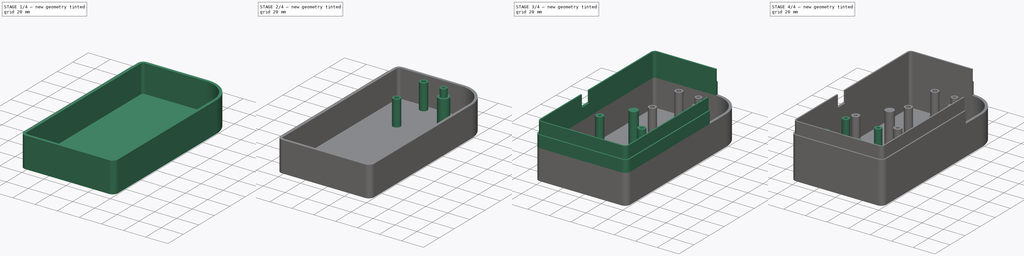
[diagram: build sequence overview — one tinted view per stage of 4, left to right]
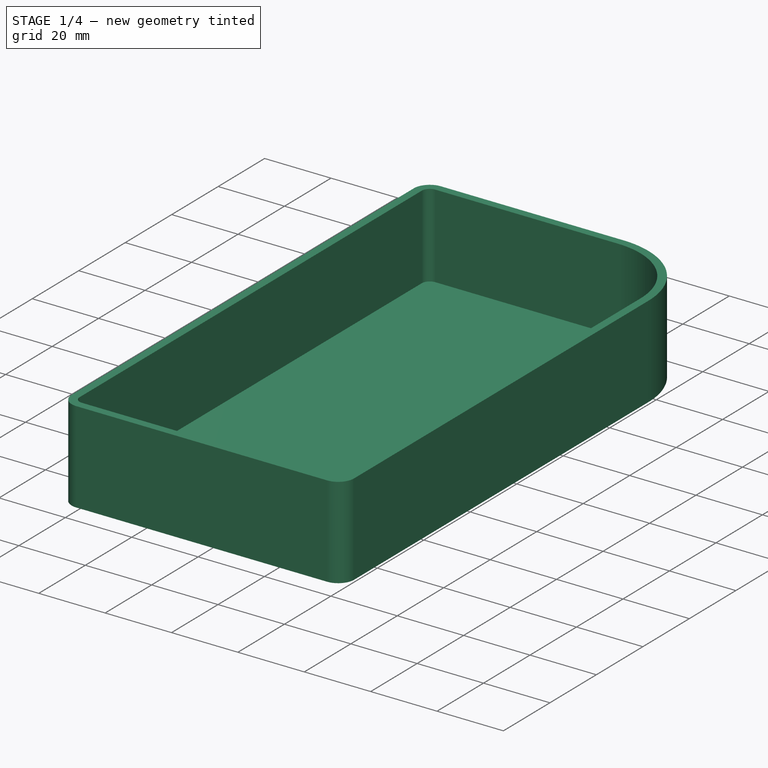
[diagram: stage 1 of 4 — iso view after this stage's code; geometry added in this stage tinted green]
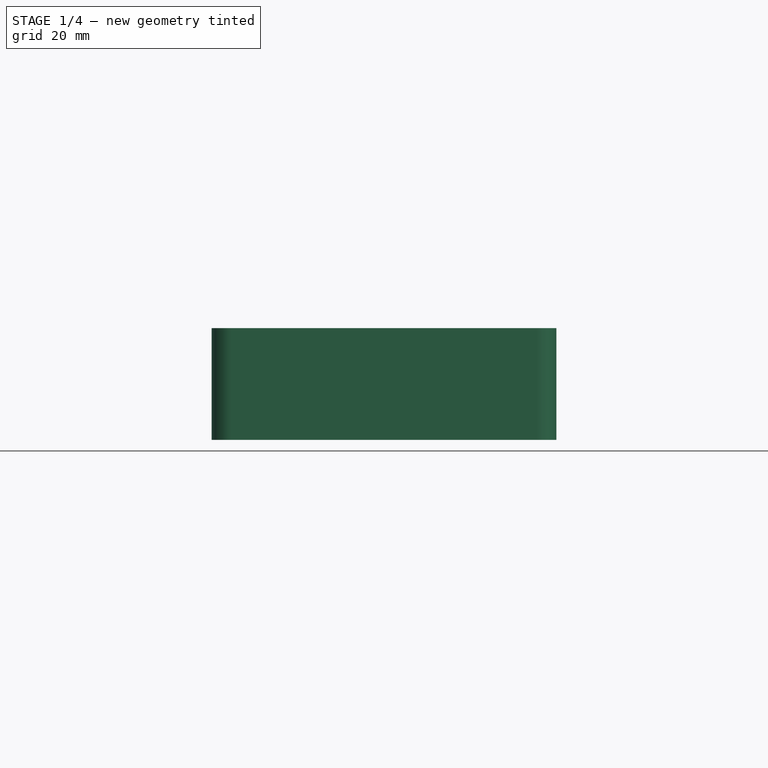
[diagram: stage 1 of 4 — front view after this stage's code; geometry added in this stage tinted green]
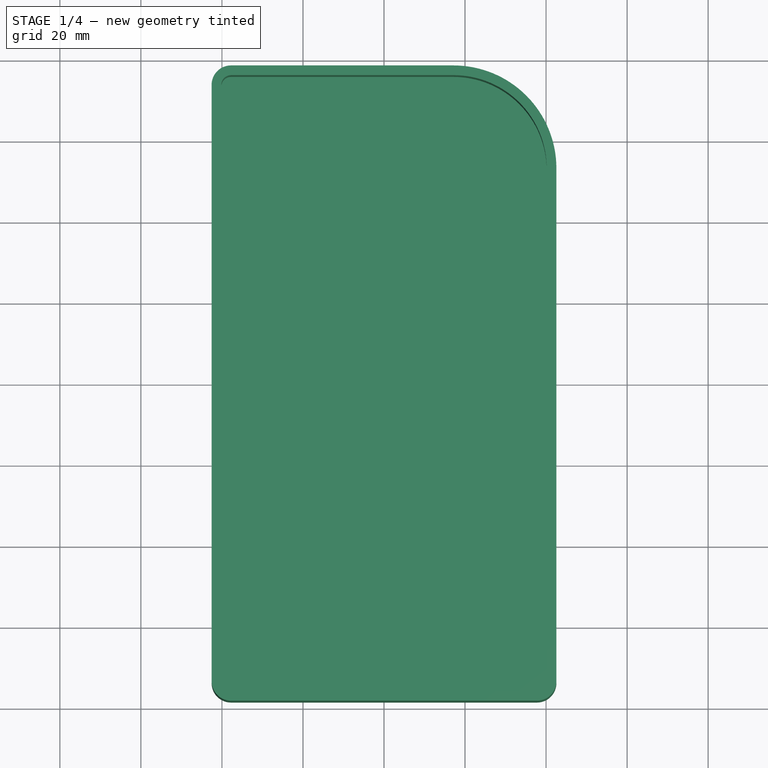
[diagram: stage 1 of 4 — top view after this stage's code; geometry added in this stage tinted green]
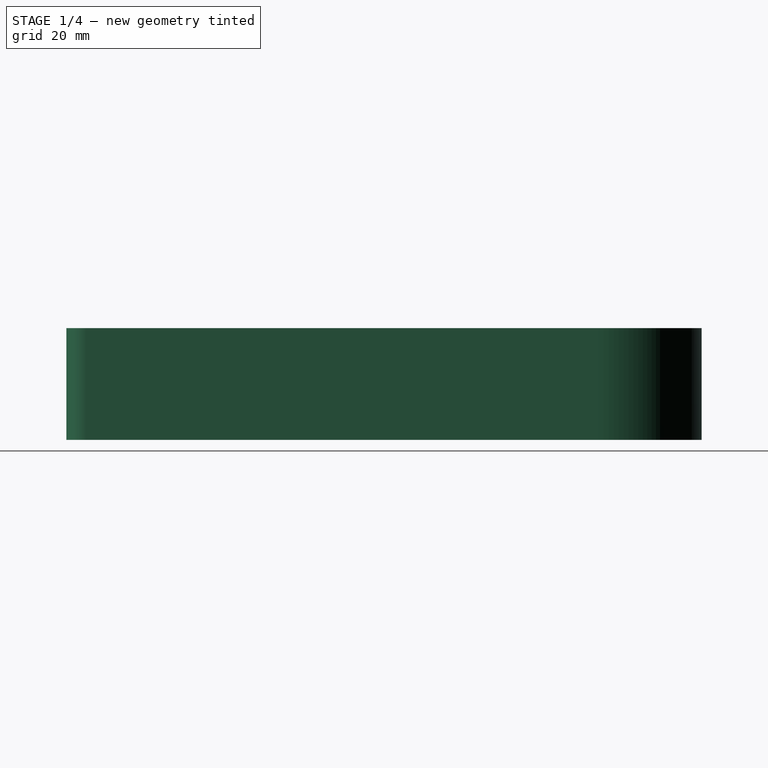
[diagram: stage 1 of 4 — right view after this stage's code; geometry added in this stage tinted green]
FCSTD DOCUMENT  (FreeCAD 0.19R24291 (Git))
Label: Back
License: All rights reserved
LicenseURL: http://en.wikipedia.org/wiki/All_rights_reserved
objects: Sketcher::SketchObject×9, PartDesign::Pad×9, PartDesign::CoordinateSystem×7, PartDesign::Fillet×1, PartDesign::Body×1
note: 37 computed .brp shape members not serialized (recipe doc carries the construction recipe); baked Part::Feature solids carry a one-line shape summary decoded from their .brp
EXTERNAL_REF file=data.FCStd obj=Spreadsheet

FEATURE [PartDesign::CoordinateSystem] LCS_0
  AttacherType = Attacher::AttachEngine3D
  MapMode = 2
  Support = -> [X_Axis]
FEATURE [Sketcher::SketchObject] Sketch  label="Sketch_back"
  FullyConstrained = true
  MapMode = 5
  Support = -> [XY_Plane]
  expr: Constraints[27] = data#<<data>>.OutsideLength
  expr: Constraints[28] = data#<<data>>.OutsideRadius
  expr: Constraints[26] = data#<<data>>.OutsideWidth
  expr: Constraints[25] = data#<<data>>.OutsideCornerRadius
  sketch-geometry (12):
    g0: ArcOfCircle CenterX=-37.75 CenterY=73.6 CenterZ=0 NormalX=0 NormalY=0 NormalZ=1 AngleXU=0 Radius=4.8 StartAngle=1.5708 EndAngle=3.14159
    g1: ArcOfCircle CenterX=17.15 CenterY=53 CenterZ=0 NormalX=0 NormalY=0 NormalZ=1 AngleXU=0 Radius=25.4 StartAngle=0 EndAngle=1.5708
    g2: ArcOfCircle CenterX=37.75 CenterY=-73.6 CenterZ=0 NormalX=0 NormalY=0 NormalZ=1 AngleXU=0 Radius=4.8 StartAngle=4.71239 EndAngle=6.28319
    g3: ArcOfCircle CenterX=-37.75 CenterY=-73.6 CenterZ=0 NormalX=0 NormalY=0 NormalZ=1 AngleXU=0 Radius=4.8 StartAngle=3.14159 EndAngle=4.71239
    g4: LineSegment StartX=-42.55 StartY=73.6 StartZ=0 EndX=-42.55 EndY=78.4 EndZ=0
    g5: LineSegment StartX=-37.75 StartY=78.4 StartZ=0 EndX=-42.55 EndY=78.4 EndZ=0
    g6: LineSegment StartX=37.75 StartY=-78.4 StartZ=0 EndX=42.55 EndY=-78.4 EndZ=0
    g7: LineSegment StartX=42.55 StartY=-73.6 StartZ=0 EndX=42.55 EndY=-78.4 EndZ=0
    g8: LineSegment StartX=-42.55 StartY=73.6 StartZ=0 EndX=-42.55 EndY=-73.6 EndZ=0
    g9: LineSegment StartX=-37.75 StartY=78.4 StartZ=0 EndX=17.15 EndY=78.4 EndZ=0
    g10: LineSegment StartX=42.55 StartY=53 StartZ=0 EndX=42.55 EndY=-73.6 EndZ=0
    g11: LineSegment StartX=-37.75 StartY=-78.4 StartZ=0 EndX=37.75 EndY=-78.4 EndZ=0
  constraints (37):
    c: Equal(g0,g3)
    c: Equal(g3,g2)
    c: Vertical(g0,g0)
    c: Vertical(g3,g3)
    c: Vertical(g2,g2)
    c: Vertical(g1,g1)
    c: Horizontal(g0,g0)
    c: Horizontal(g1,g1)
    c: Horizontal(g2,g2)
    c: Horizontal(g3,g3)
    c: Vertical(g0,g3)
    c: Vertical(g1,g2)
    c: Horizontal(g0,g1)
    c: Horizontal(g3,g2)
    c: Coincident(g4,g0)
    c: Vertical(g4)
    c: Coincident(g5,g0)
    c: Horizontal(g5)
    c: Coincident(g6,g2)
    c: Horizontal(g6)
    c: Coincident(g7,g2)
    c: Vertical(g7)
    c: Coincident(g5,g4)
    c: Coincident(g7,g6)
    c: Symmetric(g4,g6,g-1)
    c: Radius(g3) = 4.8
    c: DistanceX(g4,g1) = 85.1
    c: DistanceY(g3,g4) = 156.8
    c: Radius(g1) = 25.4
    c: Coincident(g8,g0)
    c: Coincident(g9,g0)
    c: Coincident(g10,g1)
    c: Coincident(g11,g3)
    c: Coincident(g11,g2)
    c: Coincident(g2,g10)
    c: Coincident(g8,g3)
    c: Coincident(g9,g1)
FEATURE [PartDesign::Pad] Pad
  Direction = (1,1,1)
  Length = 2.4
  Length2 = 100
  Profile = -> Sketch
  Type = 0
  expr: Length = data#<<data>>.WallThickness
FEATURE [Sketcher::SketchObject] Sketch001  label="Sketch_wall1"
  AttachmentOffset = pos=(0,0,2.4) rot=(0,0,1;0rad)
  FullyConstrained = true
  MapMode = 5
  Placement = pos=(0,0,2.4) rot=(0,0,1;0rad)
  Support = -> [XY_Plane]
  expr: Constraints[48] = data#<<data>>.InsideRadius
  expr: Constraints[47] = data#<<data>>.InsideCornerRadius
  expr: .AttachmentOffset.Base.z = data#<<data>>.WallThickness
  expr: Constraints[24] = data#<<data>>.OutsideWidth
  expr: Constraints[22] = data#<<data>>.OutsideRadius
  expr: Constraints[23] = data#<<data>>.OutsideLength
  expr: Constraints[21] = data#<<data>>.OutsideCornerRadius
  sketch-geometry (20):
    g0: ArcOfCircle CenterX=-37.75 CenterY=73.6 CenterZ=0 NormalX=0 NormalY=0 NormalZ=1 AngleXU=0 Radius=4.8 StartAngle=1.5708 EndAngle=3.14159
    g1: ArcOfCircle CenterX=17.15 CenterY=53 CenterZ=0 NormalX=0 NormalY=0 NormalZ=1 AngleXU=0 Radius=25.4 StartAngle=0 EndAngle=1.5708
    g2: ArcOfCircle CenterX=37.75 CenterY=-73.6 CenterZ=0 NormalX=0 NormalY=0 NormalZ=1 AngleXU=0 Radius=4.8 StartAngle=4.71239 EndAngle=6.28319
    g3: ArcOfCircle CenterX=-37.75 CenterY=-73.6 CenterZ=0 NormalX=0 NormalY=0 NormalZ=1 AngleXU=0 Radius=4.8 StartAngle=3.14159 EndAngle=4.71239
    g4: LineSegment StartX=-42.55 StartY=73.6 StartZ=0 EndX=-42.55 EndY=78.4 EndZ=0
    g5: LineSegment StartX=-37.75 StartY=78.4 StartZ=0 EndX=-42.55 EndY=78.4 EndZ=0
    g6: LineSegment StartX=37.75 StartY=-78.4 StartZ=0 EndX=42.55 EndY=-78.4 EndZ=0
    g7: LineSegment StartX=42.55 StartY=-73.6 StartZ=0 EndX=42.55 EndY=-78.4 EndZ=0
    g8: LineSegment StartX=-42.55 StartY=73.6 StartZ=0 EndX=-42.55 EndY=-73.6 EndZ=0
    g9: LineSegment StartX=-37.75 StartY=78.4 StartZ=0 EndX=17.15 EndY=78.4 EndZ=0
    g10: LineSegment StartX=42.55 StartY=53 StartZ=0 EndX=42.55 EndY=-73.6 EndZ=0
    g11: LineSegment StartX=37.75 StartY=-78.4 StartZ=0 EndX=-37.75 EndY=-78.4 EndZ=0
    g12: ArcOfCircle CenterX=-37.75 CenterY=73.6 CenterZ=0 NormalX=0 NormalY=0 NormalZ=1 AngleXU=0 Radius=2.4 StartAngle=1.5708 EndAngle=3.14159
    g13: ArcOfCircle CenterX=17.15 CenterY=53 CenterZ=0 NormalX=0 NormalY=0 NormalZ=1 AngleXU=0 Radius=23 StartAngle=0 EndAngle=1.5708
    g14: ArcOfCircle CenterX=37.75 CenterY=-73.6 CenterZ=0 NormalX=0 NormalY=0 NormalZ=1 AngleXU=0 Radius=2.4 StartAngle=4.71239 EndAngle=6.28319
    g15: ArcOfCircle CenterX=-37.75 CenterY=-73.6 CenterZ=0 NormalX=0 NormalY=0 NormalZ=1 AngleXU=0 Radius=2.4 StartAngle=3.14159 EndAngle=4.71239
    g16: LineSegment StartX=-37.75 StartY=76 StartZ=0 EndX=17.15 EndY=76 EndZ=0
    g17: LineSegment StartX=40.15 StartY=53 StartZ=0 EndX=40.15 EndY=-73.6 EndZ=0
    g18: LineSegment StartX=37.75 StartY=-76 StartZ=0 EndX=-37.75 EndY=-76 EndZ=0
    g19: LineSegment StartX=-40.15 StartY=-73.6 StartZ=0 EndX=-40.15 EndY=73.6 EndZ=0
  constraints (61):
    c: Vertical(g0,g0)
    c: Vertical(g1,g1)
    c: Vertical(g2,g2)
    c: Vertical(g3,g3)
    c: Horizontal(g0,g0)
    c: Horizontal(g1,g1)
    c: Horizontal(g3,g3)
    c: Horizontal(g2,g2)
    c: Coincident(g4,g0)
    c: Vertical(g4)
    c: Coincident(g5,g0)
    c: Horizontal(g5)
    c: Coincident(g4,g5)
    c: Equal(g3,g2)
    c: Equal(g2,g0)
    c: Coincident(g6,g2)
    c: Horizontal(g6)
    c: Coincident(g7,g2)
    c: Vertical(g7)
    c: Coincident(g7,g6)
    c: Symmetric(g4,g6,g-1)
    c: Radius(g3) = 4.8
    c: Radius(g1) = 25.4
    c: DistanceY(g3,g4) = 156.8
    c: DistanceX(g4,g1) = 85.1
    c: Vertical(g0,g3)
    c: Vertical(g1,g2)
    c: Horizontal(g0,g1)
    c: Horizontal(g3,g2)
    c: Coincident(g8,g0)
    c: Coincident(g8,g3)
    c: Coincident(g9,g0)
    c: Coincident(g9,g1)
    c: Coincident(g10,g1)
    c: Coincident(g10,g2)
    c: Coincident(g11,g2)
    c: Coincident(g11,g3)
    c: Vertical(g12,g12)
    c: Vertical(g13,g13)
    c: Horizontal(g12,g12)
    c: Horizontal(g13,g13)
    c: Horizontal(g14,g14)
    c: Horizontal(g15,g15)
    c: Vertical(g15,g15)
    c: Vertical(g14,g14)
    c: Equal(g12,g15)
    c: Equal(g15,g14)
    c: Radius(g15) = 2.4
    c: Radius(g13) = 23
    c: Coincident(g13,g1)
    c: Coincident(g12,g0)
    c: Coincident(g15,g3)
    c: Coincident(g14,g2)
    c: Coincident(g16,g12)
    c: Coincident(g16,g13)
    c: Coincident(g17,g13)
    c: Coincident(g17,g14)
    c: Coincident(g18,g14)
    c: Coincident(g18,g15)
    c: Coincident(g19,g15)
    c: Coincident(g19,g12)
FEATURE [PartDesign::Pad] Pad001
  BaseFeature = -> Pad
  Direction = (1,1,1)
  Length = 25.2
  Length2 = 100
  Profile = -> Sketch001
  Type = 0
  expr: Length = data#<<data>>.Gear02Height - data#<<data>>.Gear02Tol
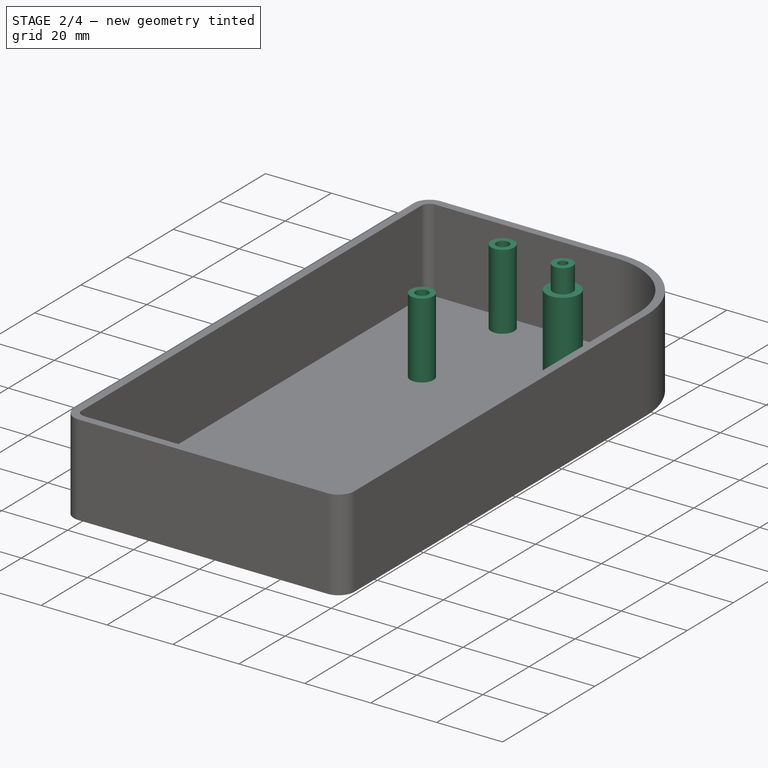
[diagram: stage 2 of 4 — iso view after this stage's code; geometry added in this stage tinted green]
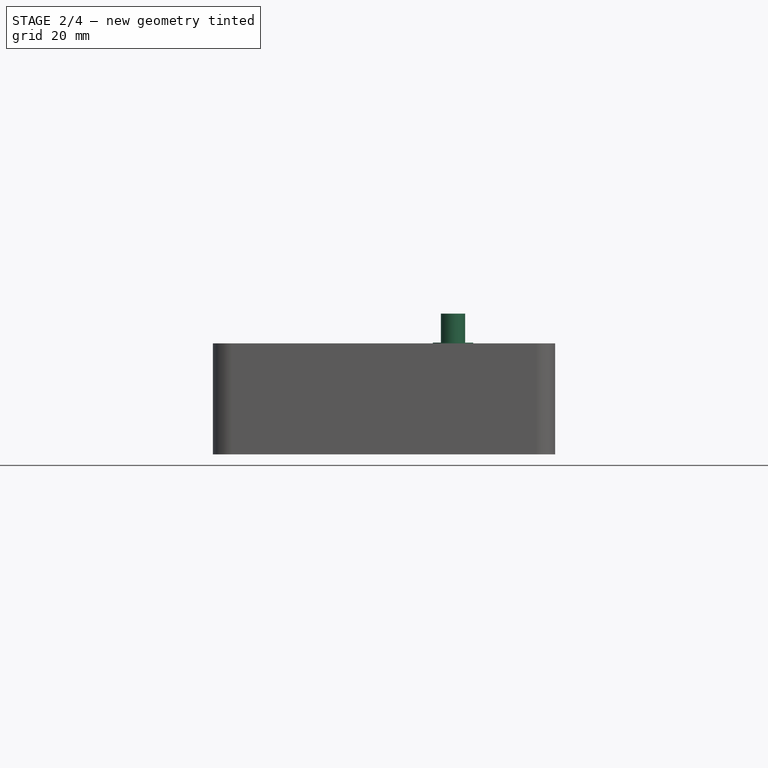
[diagram: stage 2 of 4 — front view after this stage's code; geometry added in this stage tinted green]
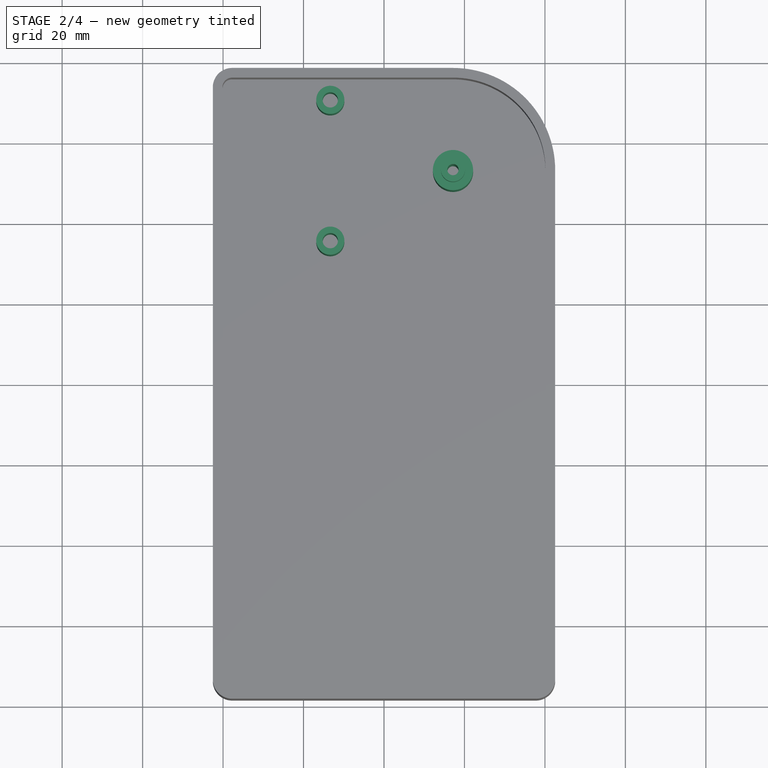
[diagram: stage 2 of 4 — top view after this stage's code; geometry added in this stage tinted green]
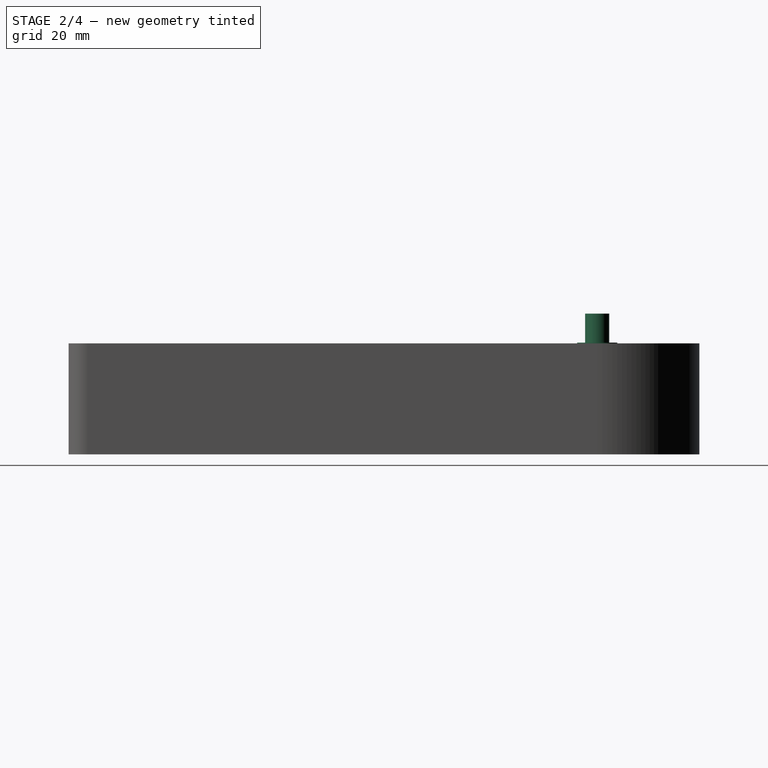
[diagram: stage 2 of 4 — right view after this stage's code; geometry added in this stage tinted green]
FEATURE [Sketcher::SketchObject] Sketch002  label="Sketch_stepper_mount"
  AttachmentOffset = pos=(0,0,2.4) rot=(0,0,1;0rad)
  FullyConstrained = true
  MapMode = 5
  Placement = pos=(0,0,2.4) rot=(0,0,1;0rad)
  Support = -> [XY_Plane]
  expr: Constraints[23] = data#<<data>>.StepperMountOutsideDiameter
  expr: Constraints[20] = data#<<data>>.Gear02Dist
  expr: Constraints[19] = data#<<data>>.StepperMountWidth
  expr: Constraints[28] = data#<<data>>.M4DiameterTap
  expr: Constraints[14] = data#<<data>>.InsideLength
  expr: Constraints[13] = data#<<data>>.InsideWidth
  expr: Constraints[12] = data#<<data>>.InsideRadius
  expr: .AttachmentOffset.Base.z = data#<<data>>.WallThickness
  sketch-geometry (11):
    g0: LineSegment StartX=-40.15 StartY=76 StartZ=0 EndX=17.15 EndY=76 EndZ=0
    g1: LineSegment StartX=40.15 StartY=53 StartZ=0 EndX=40.15 EndY=-76 EndZ=0
    g2: LineSegment StartX=40.15 StartY=-76 StartZ=0 EndX=-40.15 EndY=-76 EndZ=0
    g3: LineSegment StartX=-40.15 StartY=-76 StartZ=0 EndX=-40.15 EndY=76 EndZ=0
    g4: ArcOfCircle CenterX=17.15 CenterY=53 CenterZ=0 NormalX=0 NormalY=0 NormalZ=1 AngleXU=0 Radius=23 StartAngle=0 EndAngle=1.5708
    g5: LineSegment StartX=17.15 StartY=53 StartZ=0 EndX=-13.35 EndY=53 EndZ=0
    g6: LineSegment StartX=-13.35 StartY=70.5 StartZ=0 EndX=-13.35 EndY=35.5 EndZ=0
    g7: Circle CenterX=-13.35 CenterY=70.5 CenterZ=0 NormalX=0 NormalY=0 NormalZ=1 AngleXU=0 Radius=3.5
    g8: Circle CenterX=-13.35 CenterY=35.5 CenterZ=0 NormalX=0 NormalY=0 NormalZ=1 AngleXU=0 Radius=3.5
    g9: Circle CenterX=-13.35 CenterY=70.5 CenterZ=0 NormalX=0 NormalY=0 NormalZ=1 AngleXU=0 Radius=1.9
    g10: Circle CenterX=-13.35 CenterY=35.5 CenterZ=0 NormalX=0 NormalY=0 NormalZ=1 AngleXU=0 Radius=1.9
  constraints (29):
    c: Coincident(g1,g2)
    c: Coincident(g2,g3)
    c: Coincident(g3,g0)
    c: Horizontal(g0)
    c: Horizontal(g2)
    c: Vertical(g1)
    c: Vertical(g3)
    c: Symmetric(g0,g1,g-1)
    c: Vertical(g4,g4)
    c: Horizontal(g4,g4)
    c: Coincident(g4,g0)
    c: Coincident(g4,g1)
    c: Radius(g4) = 23
    c: DistanceX(g2,g2) = 80.3
    c: DistanceY(g3,g3) = 152
    c: Coincident(g5,g4)
    c: Horizontal(g5)
    c: Vertical(g6)
    c: Symmetric(g6,g6,g5)
    c: DistanceY(g6,g6) = 35
    c: DistanceX(g5,g5) = 30.5
    c: Coincident(g7,g6)
    c: Coincident(g8,g6)
    c: Diameter(g7) = 7
    c: Equal(g7,g8)
    c: Coincident(g9,g7)
    c: Coincident(g10,g8)
    c: Equal(g9,g10)
    c: Diameter(g10) = 3.8
FEATURE [PartDesign::Pad] Pad002
  BaseFeature = -> Pad001
  Direction = (1,1,1)
  Length = 23
  Length2 = 100
  Profile = -> Sketch002
  Type = 0
  expr: Length = data#<<data>>.StepperMountHeight
FEATURE [Sketcher::SketchObject] Sketch003  label="Sketch_gear02_mount"
  AttachmentOffset = pos=(0,0,2.4) rot=(0,0,1;0rad)
  FullyConstrained = true
  MapMode = 5
  Placement = pos=(0,0,2.4) rot=(0,0,1;0rad)
  Support = -> [XY_Plane]
  expr: Constraints[18] = data#<<data>>.M3DiameterTap
  expr: Constraints[16] = data#<<data>>.Gear02MountDiameter
  expr: .AttachmentOffset.Base.z = data#<<data>>.WallThickness
  expr: Constraints[12] = data#<<data>>.InsideRadius
  expr: Constraints[13] = data#<<data>>.InsideWidth
  expr: Constraints[14] = data#<<data>>.InsideLength
  sketch-geometry (7):
    g0: LineSegment StartX=-40.15 StartY=76 StartZ=0 EndX=17.15 EndY=76 EndZ=0
    g1: LineSegment StartX=40.15 StartY=53 StartZ=0 EndX=40.15 EndY=-76 EndZ=0
    g2: LineSegment StartX=40.15 StartY=-76 StartZ=0 EndX=-40.15 EndY=-76 EndZ=0
    g3: LineSegment StartX=-40.15 StartY=-76 StartZ=0 EndX=-40.15 EndY=76 EndZ=0
    g4: ArcOfCircle CenterX=17.15 CenterY=53 CenterZ=0 NormalX=0 NormalY=0 NormalZ=1 AngleXU=0 Radius=23 StartAngle=0 EndAngle=1.5708
    g5: Circle CenterX=17.15 CenterY=53 CenterZ=0 NormalX=0 NormalY=0 NormalZ=1 AngleXU=0 Radius=5
    g6: Circle CenterX=17.15 CenterY=53 CenterZ=0 NormalX=0 NormalY=0 NormalZ=1 AngleXU=0 Radius=1.4
  constraints (19):
    c: Coincident(g1,g2)
    c: Coincident(g2,g3)
    c: Coincident(g3,g0)
    c: Horizontal(g0)
    c: Horizontal(g2)
    c: Vertical(g1)
    c: Vertical(g3)
    c: Symmetric(g0,g1,g-1)
    c: Vertical(g4,g4)
    c: Horizontal(g4,g4)
    c: Coincident(g4,g0)
    c: Coincident(g4,g1)
    c: Radius(g4) = 23
    c: DistanceX(g2,g2) = 80.3
    c: DistanceY(g3,g3) = 152
    c: Coincident(g5,g4)
    c: Diameter(g5) = 10
    c: Coincident(g6,g5)
    c: Diameter(g6) = 2.8
FEATURE [PartDesign::Pad] Pad003
  BaseFeature = -> Pad002
  Direction = (1,1,1)
  Length = 25.4
  Length2 = 100
  Profile = -> Sketch003
  Type = 0
  expr: Length = data#<<data>>.Gear02Height
FEATURE [Sketcher::SketchObject] Sketch004  label="Sketch_gear02_shaft"
  AttachmentOffset = pos=(0,0,27.8) rot=(0,0,1;0rad)
  FullyConstrained = true
  MapMode = 5
  Placement = pos=(0,0,27.8) rot=(0,0,1;0rad)
  Support = -> [XY_Plane]
  expr: Constraints[14] = data#<<data>>.InsideLength
  expr: Constraints[13] = data#<<data>>.InsideWidth
  expr: Constraints[12] = data#<<data>>.InsideRadius
  expr: .AttachmentOffset.Base.z = data#<<data>>.WallThickness + data#<<data>>.Gear02Height
  expr: Constraints[18] = data#<<data>>.M3DiameterTap
  expr: Constraints[16] = data#<<data>>.Gear02ShaftDiameter
  sketch-geometry (7):
    g0: LineSegment StartX=-40.15 StartY=76 StartZ=0 EndX=17.15 EndY=76 EndZ=0
    g1: LineSegment StartX=40.15 StartY=53 StartZ=0 EndX=40.15 EndY=-76 EndZ=0
    g2: LineSegment StartX=40.15 StartY=-76 StartZ=0 EndX=-40.15 EndY=-76 EndZ=0
    g3: LineSegment StartX=-40.15 StartY=-76 StartZ=0 EndX=-40.15 EndY=76 EndZ=0
    g4: ArcOfCircle CenterX=17.15 CenterY=53 CenterZ=0 NormalX=0 NormalY=0 NormalZ=1 AngleXU=0 Radius=23 StartAngle=0 EndAngle=1.5708
    g5: Circle CenterX=17.15 CenterY=53 CenterZ=0 NormalX=0 NormalY=0 NormalZ=1 AngleXU=0 Radius=3
    g6: Circle CenterX=17.15 CenterY=53 CenterZ=0 NormalX=0 NormalY=0 NormalZ=1 AngleXU=0 Radius=1.4
  constraints (19):
    c: Coincident(g1,g2)
    c: Coincident(g2,g3)
    c: Coincident(g3,g0)
    c: Horizontal(g0)
    c: Horizontal(g2)
    c: Vertical(g1)
    c: Vertical(g3)
    c: Symmetric(g0,g1,g-1)
    c: Vertical(g4,g4)
    c: Horizontal(g4,g4)
    c: Coincident(g4,g0)
    c: Coincident(g4,g1)
    c: Radius(g4) = 23
    c: DistanceX(g2,g2) = 80.3
    c: DistanceY(g3,g3) = 152
    c: Coincident(g5,g4)
    c: Diameter(g5) = 6
    c: Coincident(g6,g5)
    c: Diameter(g6) = 2.8
FEATURE [PartDesign::Pad] Pad004
  BaseFeature = -> Pad003
  Direction = (1,1,1)
  Length = 7.2
  Length2 = 100
  Profile = -> Sketch004
  Type = 0
  expr: Length = data#<<data>>.Gear02ShaftLength
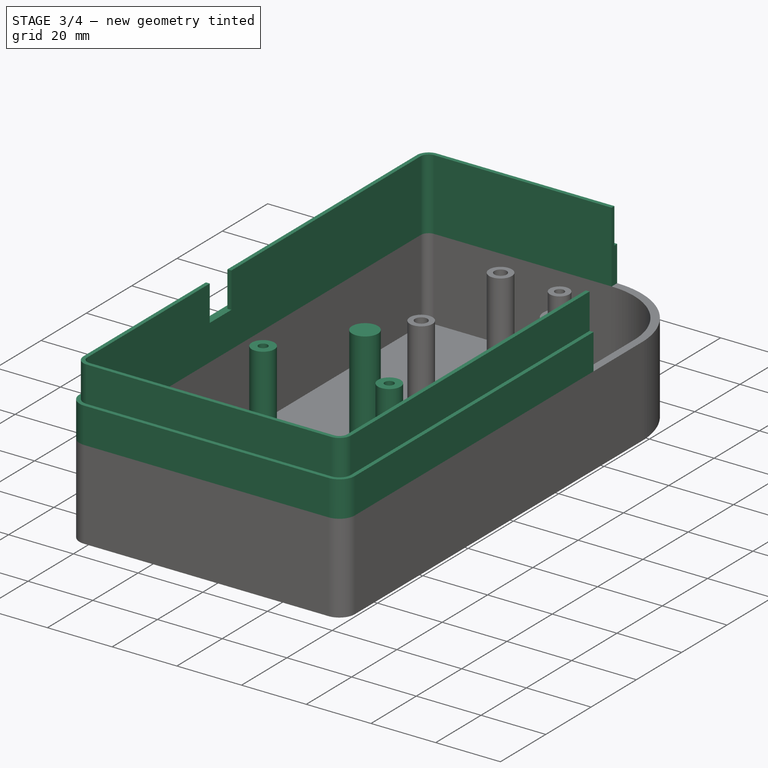
[diagram: stage 3 of 4 — iso view after this stage's code; geometry added in this stage tinted green]
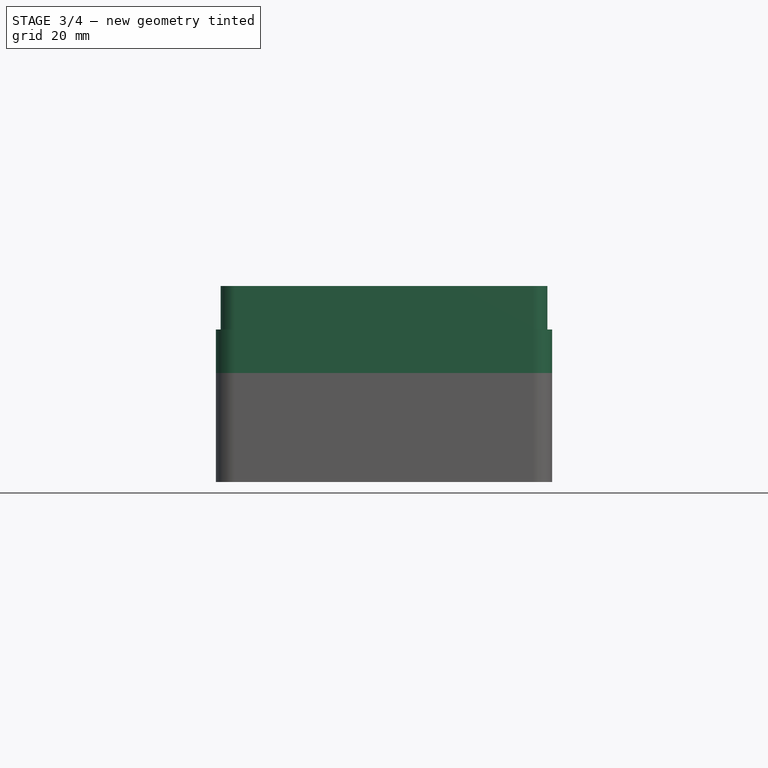
[diagram: stage 3 of 4 — front view after this stage's code; geometry added in this stage tinted green]
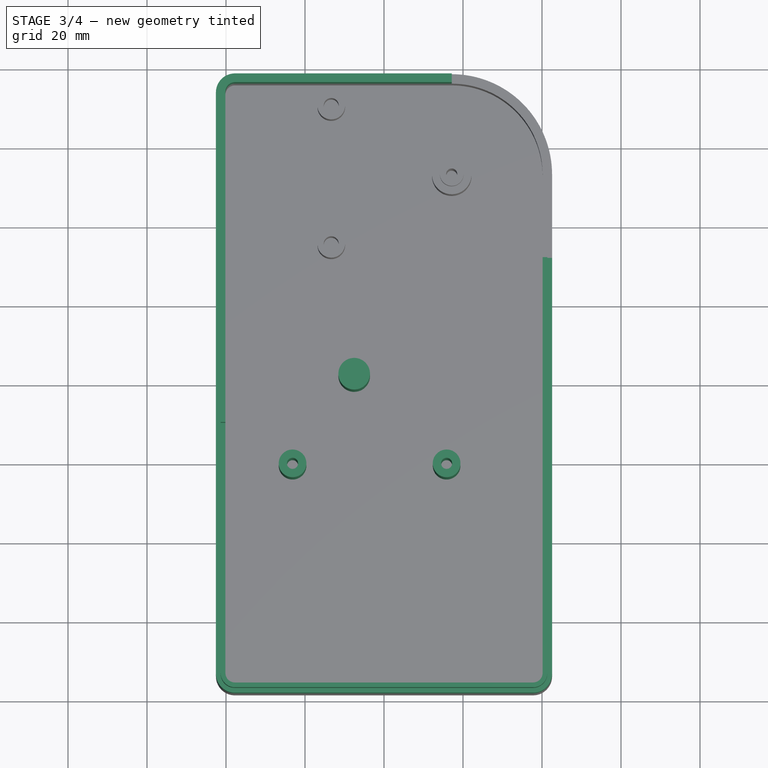
[diagram: stage 3 of 4 — top view after this stage's code; geometry added in this stage tinted green]
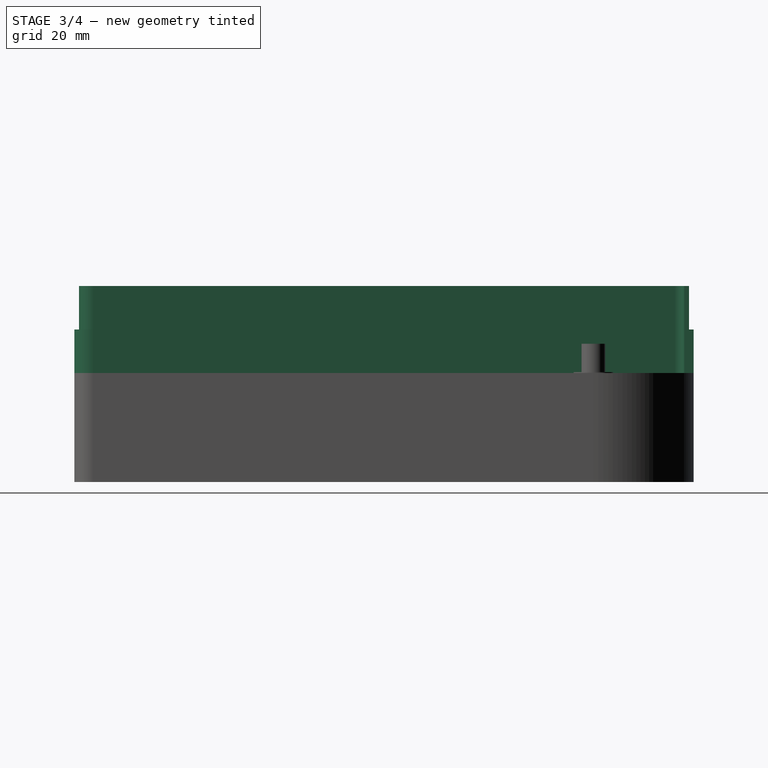
[diagram: stage 3 of 4 — right view after this stage's code; geometry added in this stage tinted green]
FEATURE [Sketcher::SketchObject] Sketch005  label="Sketch_pcb_mount"
  AttachmentOffset = pos=(0,0,2.4) rot=(0,0,1;0rad)
  FullyConstrained = true
  MapMode = 5
  Placement = pos=(0,0,2.4) rot=(0,0,1;0rad)
  Support = -> [XY_Plane]
  expr: .AttachmentOffset.Base.z = data#<<data>>.WallThickness
  expr: Constraints[39] = data#<<data>>.KnobShaftOffsetX - data#<<data>>.WallThickness
  expr: Constraints[5] = data#<<data>>.InsideRadius
  expr: Constraints[38] = data#<<data>>.KnobShaftOffsetY - data#<<data>>.WallThickness
  expr: Constraints[13] = data#<<data>>.InsideWidth
  expr: Constraints[14] = data#<<data>>.InsideLength
  expr: Constraints[26] = data#<<data>>.PCBMountY
  expr: Constraints[25] = data#<<data>>.PCBMountY
  expr: Constraints[29] = data#<<data>>.PCBMount1X
  expr: Constraints[27] = data#<<data>>.PCBMount2X
  expr: Constraints[30] = data#<<data>>.PCBMountOutsideDiameter
  expr: Constraints[23] = data#<<data>>.PCBLength
  expr: Constraints[32] = data#<<data>>.PCBGear02Y
  expr: Constraints[24] = data#<<data>>.PCBWidth
  expr: Constraints[31] = data#<<data>>.PCBGear02X
  expr: Constraints[36] = data#<<data>>.PCBMountInsideDiameter
  sketch-geometry (14):
    g0: LineSegment StartX=-40.15 StartY=76 StartZ=0 EndX=-40.15 EndY=-76 EndZ=0
    g1: LineSegment StartX=-40.15 StartY=-76 StartZ=0 EndX=40.15 EndY=-76 EndZ=0
    g2: LineSegment StartX=-40.15 StartY=76 StartZ=0 EndX=17.15 EndY=76 EndZ=0
    g3: ArcOfCircle CenterX=17.15 CenterY=53 CenterZ=0 NormalX=0 NormalY=0 NormalZ=1 AngleXU=0 Radius=23 StartAngle=0 EndAngle=1.5708
    g4: LineSegment StartX=40.15 StartY=53 StartZ=0 EndX=40.15 EndY=-76 EndZ=0
    g5: LineSegment StartX=-39.15 StartY=74.7 StartZ=0 EndX=20.85 EndY=74.7 EndZ=0
    g6: LineSegment StartX=20.85 StartY=74.7 StartZ=0 EndX=20.85 EndY=-25.3 EndZ=0
    g7: LineSegment StartX=20.85 StartY=-25.3 StartZ=0 EndX=-39.15 EndY=-25.3 EndZ=0
    g8: LineSegment StartX=-39.15 StartY=-25.3 StartZ=0 EndX=-39.15 EndY=74.7 EndZ=0
    g9: Circle CenterX=-23.15 CenterY=-20.3 CenterZ=0 NormalX=0 NormalY=0 NormalZ=1 AngleXU=0 Radius=3.5
    g10: Circle CenterX=15.85 CenterY=-20.3 CenterZ=0 NormalX=0 NormalY=0 NormalZ=1 AngleXU=0 Radius=3.5
    g11: Circle CenterX=-23.15 CenterY=-20.3 CenterZ=0 NormalX=0 NormalY=0 NormalZ=1 AngleXU=0 Radius=1.4
    g12: Circle CenterX=15.85 CenterY=-20.3 CenterZ=0 NormalX=0 NormalY=0 NormalZ=1 AngleXU=0 Radius=1.4
    g13: Circle CenterX=-7.55 CenterY=2.4 CenterZ=0 NormalX=0 NormalY=0 NormalZ=1 AngleXU=0 Radius=4
  constraints (40):
    c: Vertical(g0)
    c: Horizontal(g1)
    c: Horizontal(g2)
    c: Vertical(g3,g3)
    c: Horizontal(g3,g3)
    c: Radius(g3) = 23
    c: Coincident(g2,g3)
    c: Coincident(g2,g0)
    c: Coincident(g1,g0)
    c: Coincident(g4,g3)
    c: Vertical(g4)
    c: Coincident(g4,g1)
    c: Symmetric(g0,g1,g-1)
    c: DistanceX(g1,g1) = 80.3
    c: DistanceY(g0,g0) = 152
    c: Coincident(g5,g6)
    c: Coincident(g6,g7)
    c: Coincident(g7,g8)
    c: Coincident(g8,g5)
    c: Horizontal(g5)
    c: Horizontal(g7)
    c: Vertical(g6)
    c: Vertical(g8)
    c: DistanceY(g8,g8) = 100
    c: DistanceX(g5,g5) = 60
    c: DistanceY(g6,g10) = 5
    c: DistanceY(g7,g9) = 5
    c: DistanceX(g10,g6) = 5
    c: Equal(g9,g10)
    c: DistanceX(g7,g9) = 16
    c: Diameter(g10) = 7
    c: DistanceX(g3,g5) = 3.7
    c: DistanceY(g3,g5) = 21.7
    c: Coincident(g11,g9)
    c: Coincident(g12,g10)
    c: Equal(g11,g12)
    c: Diameter(g11) = 2.8
    c: Diameter(g13) = 8
    c: DistanceY(g13,g2) = 73.6
    c: DistanceX(g0,g13) = 32.6
FEATURE [PartDesign::Pad] Pad005
  BaseFeature = -> Pad004
  Direction = (1,1,1)
  Length = 34.6
  Length2 = 100
  Profile = -> Sketch005
  Type = 0
  expr: Length = data#<<data>>.PCBHeight
FEATURE [Sketcher::SketchObject] Sketch006  label="Sketch_wall2"
  AttachmentOffset = pos=(0,0,27.6) rot=(0,0,1;0rad)
  FullyConstrained = true
  MapMode = 5
  Placement = pos=(0,0,27.6) rot=(0,0,1;0rad)
  Support = -> [XY_Plane]
  expr: Constraints[39] = data#<<data>>.OutsideRadius
  expr: .AttachmentOffset.Base.z = data#<<data>>.Gear02Height - data#<<data>>.Gear02Tol + data#<<data>>.WallThickness
  expr: Constraints[40] = data#<<data>>.OutsideCornerRadius
  expr: Constraints[10] = data#<<data>>.InsideCornerRadius
  expr: Constraints[11] = data#<<data>>.InsideRadius
  expr: Constraints[20] = data#<<data>>.InsideWidth
  expr: Constraints[21] = data#<<data>>.InsideLength
  expr: Constraints[60] = data#<<data>>.OutsideLowAngle
  sketch-geometry (19):
    g0: ArcOfCircle CenterX=-37.75 CenterY=73.6 CenterZ=0 NormalX=0 NormalY=0 NormalZ=1 AngleXU=0 Radius=2.4 StartAngle=1.5708 EndAngle=3.14159
    g1: ArcOfCircle CenterX=17.15 CenterY=53 CenterZ=0 NormalX=0 NormalY=0 NormalZ=1 AngleXU=0 Radius=23 StartAngle=0 EndAngle=1.5708
    g2: ArcOfCircle CenterX=37.75 CenterY=-73.6 CenterZ=0 NormalX=0 NormalY=0 NormalZ=1 AngleXU=0 Radius=2.4 StartAngle=4.71239 EndAngle=6.28319
    g3: ArcOfCircle CenterX=-37.75 CenterY=-73.6 CenterZ=0 NormalX=0 NormalY=0 NormalZ=1 AngleXU=0 Radius=2.4 StartAngle=3.14159 EndAngle=4.71239
    g4: LineSegment StartX=-37.75 StartY=76 StartZ=0 EndX=17.15 EndY=76 EndZ=0
    g5: LineSegment StartX=-37.75 StartY=-76 StartZ=0 EndX=37.75 EndY=-76 EndZ=0
    g6: LineSegment StartX=-40.15 StartY=73.6 StartZ=0 EndX=-40.15 EndY=-73.6 EndZ=0
    g7: ArcOfCircle CenterX=-37.75 CenterY=73.6 CenterZ=0 NormalX=0 NormalY=0 NormalZ=1 AngleXU=0 Radius=4.8 StartAngle=1.5708 EndAngle=3.14159
    g8: ArcOfCircle CenterX=17.15 CenterY=53 CenterZ=0 NormalX=0 NormalY=0 NormalZ=1 AngleXU=0 Radius=25.4 StartAngle=0 EndAngle=1.5708
    g9: ArcOfCircle CenterX=37.75 CenterY=-73.6 CenterZ=0 NormalX=0 NormalY=0 NormalZ=1 AngleXU=0 Radius=4.8 StartAngle=4.71239 EndAngle=6.28319
    g10: ArcOfCircle CenterX=-37.75 CenterY=-73.6 CenterZ=0 NormalX=0 NormalY=0 NormalZ=1 AngleXU=0 Radius=4.8 StartAngle=3.14159 EndAngle=4.71239
    g11: LineSegment StartX=-42.55 StartY=73.6 StartZ=0 EndX=-42.55 EndY=-73.6 EndZ=0
    g12: LineSegment StartX=-37.75 StartY=-78.4 StartZ=0 EndX=37.75 EndY=-78.4 EndZ=0
    g13: LineSegment StartX=17.15 StartY=78.4 StartZ=0 EndX=-37.75 EndY=78.4 EndZ=0
    g14: LineSegment StartX=17.15 StartY=78.4 StartZ=0 EndX=17.15 EndY=76 EndZ=0
    g15: LineSegment StartX=40.15 StartY=-73.6 StartZ=0 EndX=40.15 EndY=31.6869 EndZ=0
    g16: LineSegment StartX=42.55 StartY=31.6869 StartZ=0 EndX=42.55 EndY=-73.6 EndZ=0
    g17: LineSegment StartX=40.15 StartY=31.6869 StartZ=0 EndX=42.55 EndY=31.6869 EndZ=0
    g18: LineSegment StartX=17.15 StartY=53 StartZ=0 EndX=42.55 EndY=31.6869 EndZ=0
  constraints (61):
    c: Vertical(g0,g0)
    c: Vertical(g3,g3)
    c: Vertical(g2,g2)
    c: Vertical(g1,g1)
    c: Horizontal(g1,g1)
    c: Horizontal(g2,g2)
    c: Horizontal(g3,g3)
    c: Horizontal(g0,g0)
    c: Equal(g0,g3)
    c: Equal(g3,g2)
    c: Radius(g3) = 2.4
    c: Radius(g1) = 23
    c: Vertical(g0,g3)
    c: Horizontal(g0,g1)
    c: Horizontal(g3,g2)
    c: Coincident(g4,g0)
    c: Coincident(g4,g1)
    c: Coincident(g5,g3)
    c: Coincident(g5,g2)
    c: Symmetric(g0,g2,g-1)
    c: DistanceX(g3,g2) = 80.3
    c: DistanceY(g3,g0) = 152
    c: Coincident(g6,g0)
    c: Coincident(g6,g3)
    c: Vertical(g7,g7)
    c: Vertical(g10,g10)
    c: Vertical(g8,g8)
    c: Vertical(g9,g9)
    c: Vertical(g8,g9)
    c: Vertical(g7,g10)
    c: Horizontal(g7,g7)
    c: Horizontal(g8,g8)
    c: Horizontal(g9,g9)
    c: Horizontal(g10,g10)
    c: Horizontal(g10,g9)
    c: Horizontal(g8,g7)
    c: Equal(g7,g10)
    c: Equal(g10,g9)
    c: Symmetric(g7,g9,g-1)
    c: Radius(g8) = 25.4
    c: Radius(g9) = 4.8
    c: Coincident(g11,g7)
    c: Coincident(g11,g10)
    c: Coincident(g12,g10)
    c: Coincident(g12,g9)
    c: Coincident(g13,g8)
    c: Coincident(g13,g7)
    c: Coincident(g10,g3)
    c: Vertical(g1,g2)
    c: Coincident(g14,g13)
    c: Coincident(g14,g4)
    c: Coincident(g15,g2)
    c: Vertical(g15)
    c: Vertical(g16)
    c: Coincident(g9,g16)
    c: Horizontal(g15,g16)
    c: Coincident(g17,g15)
    c: Coincident(g17,g16)
    c: Coincident(g18,g1)
    c: Coincident(g18,g16)
    c: Angle(g-2,g18) = 0.872665
FEATURE [PartDesign::Pad] Pad006
  BaseFeature = -> Pad005
  Direction = (1,1,1)
  Length = 11
  Length2 = 100
  Profile = -> Sketch006
  Type = 0
  expr: Length = data#<<data>>.Wall2Height
FEATURE [Sketcher::SketchObject] Sketch007  label="Sketch_wall3"
  AttachmentOffset = pos=(0,0,38.6) rot=(0,0,1;0rad)
  FullyConstrained = true
  MapMode = 5
  Placement = pos=(0,0,38.6) rot=(0,0,1;0rad)
  Support = -> [XY_Plane]
  expr: Constraints[11] = data#<<data>>.PCBWidth
  expr: Constraints[23] = data#<<data>>.InsideCornerRadius
  expr: Constraints[35] = data#<<data>>.InsideLength
  expr: Constraints[12] = data#<<data>>.PCBLength
  expr: Constraints[34] = data#<<data>>.InsideWidth
  expr: Constraints[13] = data#<<data>>.PCBGear02X
  expr: Constraints[82] = data#<<data>>.WallThickness
  expr: Constraints[44] = data#<<data>>.MiddleCornerRadius
  expr: Constraints[87] = data#<<data>>.OutsideLowAngle
  expr: .AttachmentOffset.Base.z = data#<<data>>.WallThickness + data#<<data>>.PCBHeight + data#<<data>>.PCBThickness
  expr: Constraints[51] = data#<<data>>.MiddleRadius
  expr: Constraints[73] = data#<<data>>.PCBPowerJackY
  expr: Constraints[14] = data#<<data>>.PCBGear02Y
  expr: Constraints[2] = data#<<data>>.InsideRadius
  expr: Constraints[74] = data#<<data>>.PowerJackWidth
  sketch-geometry (28):
    g0: ArcOfCircle CenterX=17.15 CenterY=53 CenterZ=0 NormalX=0 NormalY=0 NormalZ=1 AngleXU=0 Radius=23 StartAngle=0 EndAngle=1.5708
    g1: LineSegment StartX=-39.15 StartY=74.7 StartZ=0 EndX=20.85 EndY=74.7 EndZ=0
    g2: LineSegment StartX=20.85 StartY=74.7 StartZ=0 EndX=20.85 EndY=-25.3 EndZ=0
    g3: LineSegment StartX=20.85 StartY=-25.3 StartZ=0 EndX=-39.15 EndY=-25.3 EndZ=0
    g4: LineSegment StartX=-39.15 StartY=-25.3 StartZ=0 EndX=-39.15 EndY=74.7 EndZ=0
    g5: ArcOfCircle CenterX=-37.75 CenterY=73.6 CenterZ=0 NormalX=0 NormalY=0 NormalZ=1 AngleXU=0 Radius=2.4 StartAngle=1.5708 EndAngle=3.14159
    g6: ArcOfCircle CenterX=37.75 CenterY=-73.6 CenterZ=0 NormalX=0 NormalY=0 NormalZ=1 AngleXU=0 Radius=2.4 StartAngle=4.71239 EndAngle=6.28319
    g7: ArcOfCircle CenterX=-37.75 CenterY=-73.6 CenterZ=0 NormalX=0 NormalY=0 NormalZ=1 AngleXU=0 Radius=2.4 StartAngle=3.14159 EndAngle=4.71239
    g8: LineSegment StartX=-37.75 StartY=76 StartZ=0 EndX=17.15 EndY=76 EndZ=0
    g9: LineSegment StartX=40.15 StartY=31.6869 StartZ=0 EndX=40.15 EndY=-73.6 EndZ=0
    g10: LineSegment StartX=37.75 StartY=-76 StartZ=0 EndX=-37.75 EndY=-76 EndZ=0
    g11: ArcOfCircle CenterX=-37.75 CenterY=73.6 CenterZ=0 NormalX=0 NormalY=0 NormalZ=1 AngleXU=0 Radius=3.6 StartAngle=1.5708 EndAngle=3.14159
    g12: ArcOfCircle CenterX=-37.75 CenterY=-73.6 CenterZ=0 NormalX=0 NormalY=0 NormalZ=1 AngleXU=0 Radius=3.6 StartAngle=3.14159 EndAngle=4.71239
    g13: ArcOfCircle CenterX=37.75 CenterY=-73.6 CenterZ=0 NormalX=0 NormalY=0 NormalZ=1 AngleXU=0 Radius=3.6 StartAngle=4.71239 EndAngle=6.28319
    g14: ArcOfCircle CenterX=17.15 CenterY=53 CenterZ=0 NormalX=0 NormalY=0 NormalZ=1 AngleXU=0 Radius=24.2 StartAngle=0 EndAngle=1.5708
    g15: LineSegment StartX=-37.75 StartY=77.2 StartZ=0 EndX=17.15 EndY=77.2 EndZ=0
    g16: LineSegment StartX=41.35 StartY=31.6869 StartZ=0 EndX=41.35 EndY=-73.6 EndZ=0
    g17: LineSegment StartX=-37.75 StartY=-77.2 StartZ=0 EndX=37.75 EndY=-77.2 EndZ=0
    g18: LineSegment StartX=-41.35 StartY=-73.6 StartZ=0 EndX=-41.35 EndY=-19.55 EndZ=0
    g19: LineSegment StartX=-40.15 StartY=-73.6 StartZ=0 EndX=-40.15 EndY=-19.55 EndZ=0
    g20: LineSegment StartX=-41.35 StartY=73.6 StartZ=0 EndX=-41.35 EndY=-10.05 EndZ=0
    g21: LineSegment StartX=-40.15 StartY=73.6 StartZ=0 EndX=-40.15 EndY=-10.05 EndZ=0
    g22: LineSegment StartX=-41.35 StartY=-10.05 StartZ=0 EndX=-40.15 EndY=-10.05 EndZ=0
    g23: LineSegment StartX=-41.35 StartY=-19.55 StartZ=0 EndX=-40.15 EndY=-19.55 EndZ=0
    g24: LineSegment StartX=40.15 StartY=31.6869 StartZ=0 EndX=41.35 EndY=31.6869 EndZ=0
    g25: LineSegment StartX=41.35 StartY=31.6869 StartZ=0 EndX=42.55 EndY=31.6869 EndZ=0
    g26: LineSegment StartX=17.15 StartY=77.2 StartZ=0 EndX=17.15 EndY=76 EndZ=0
    g27: LineSegment StartX=17.15 StartY=53 StartZ=0 EndX=42.55 EndY=31.6869 EndZ=0
  constraints (88):
    c: Vertical(g0,g0)
    c: Horizontal(g0,g0)
    c: Radius(g0) = 23
    c: Coincident(g1,g2)
    c: Coincident(g2,g3)
    c: Coincident(g3,g4)
    c: Coincident(g4,g1)
    c: Horizontal(g1)
    c: Horizontal(g3)
    c: Vertical(g2)
    c: Vertical(g4)
    c: DistanceX(g1,g1) = 60
    c: DistanceY(g2,g2) = 100
    c: DistanceX(g0,g1) = 3.7
    c: DistanceY(g0,g1) = 21.7
    c: Vertical(g5,g5)
    c: Vertical(g7,g7)
    c: Vertical(g6,g6)
    c: Horizontal(g6,g6)
    c: Horizontal(g7,g7)
    c: Horizontal(g5,g5)
    c: Equal(g6,g7)
    c: Equal(g7,g5)
    c: Radius(g5) = 2.4
    c: Vertical(g0,g6)
    c: Vertical(g5,g7)
    c: Horizontal(g7,g6)
    c: Horizontal(g0,g5)
    c: Coincident(g8,g5)
    c: Coincident(g8,g0)
    c: Coincident(g9,g6)
    c: Coincident(g10,g6)
    c: Coincident(g10,g7)
    c: Symmetric(g5,g6,g-1)
    c: DistanceX(g7,g6) = 80.3
    c: DistanceY(g7,g5) = 152
    c: Vertical(g13,g13)
    c: Vertical(g12,g12)
    c: Vertical(g11,g11)
    c: Horizontal(g11,g11)
    c: Horizontal(g12,g12)
    c: Horizontal(g13,g13)
    c: Equal(g13,g12)
    c: Equal(g12,g11)
    c: Radius(g13) = 3.6
    c: Vertical(g14,g14)
    c: Horizontal(g14,g14)
    c: Vertical(g14,g13)
    c: Horizontal(g12,g13)
    c: Vertical(g12,g11)
    c: Horizontal(g11,g14)
    c: Radius(g14) = 24.2
    c: Symmetric(g11,g13,g-1)
    c: Coincident(g14,g0)
    c: Coincident(g15,g11)
    c: Coincident(g15,g14)
    c: Coincident(g16,g13)
    c: Coincident(g17,g12)
    c: Coincident(g17,g13)
    c: Coincident(g18,g12)
    c: Coincident(g19,g7)
    c: Coincident(g20,g11)
    c: Coincident(g21,g5)
    c: Vertical(g20)
    c: Vertical(g21)
    c: Vertical(g18)
    c: Vertical(g19)
    c: Horizontal(g18,g19)
    c: Horizontal(g20,g21)
    c: Coincident(g22,g20)
    c: Coincident(g22,g21)
    c: Coincident(g23,g18)
    c: Coincident(g23,g19)
    c: DistanceY(g3,g19) = 5.75
    c: DistanceY(g18,g20) = 9.5
    c: Horizontal(g9,g16)
    c: Vertical(g16)
    c: Vertical(g9)
    c: Coincident(g24,g9)
    c: Coincident(g24,g16)
    c: Coincident(g25,g16)
    c: Horizontal(g25)
    c: DistanceX(g9,g25) = 2.4
    c: Coincident(g26,g15)
    c: Coincident(g26,g8)
    c: Coincident(g27,g0)
    c: Coincident(g27,g25)
    c: Angle(g-2,g27) = 0.872665
FEATURE [PartDesign::Pad] Pad007
  BaseFeature = -> Pad006
  Direction = (1,1,1)
  Length = 11
  Length2 = 100
  Profile = -> Sketch007
  Type = 0
  expr: Length = data#<<data>>.Wall3Height
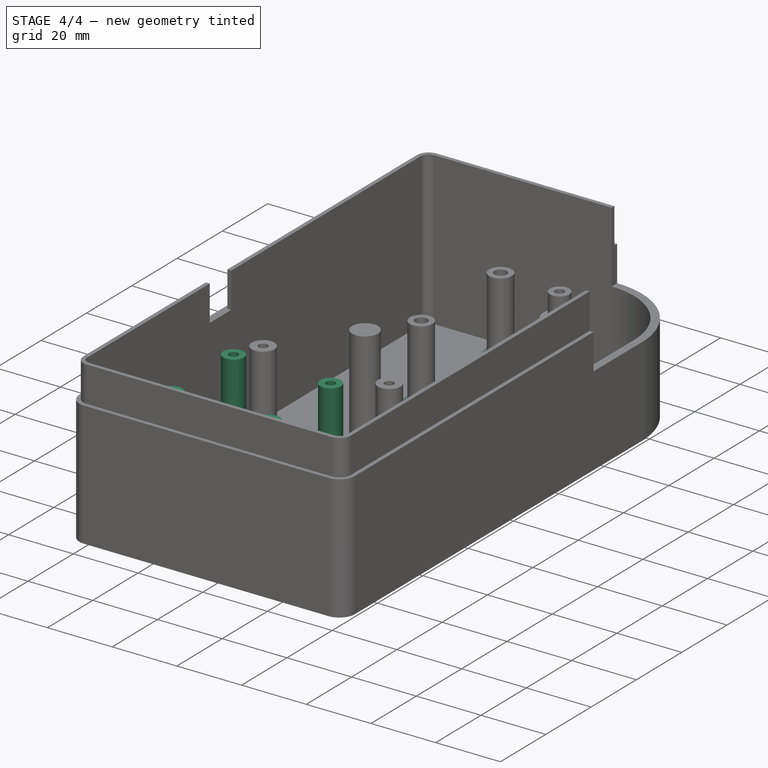
[diagram: stage 4 of 4 — iso view after this stage's code; geometry added in this stage tinted green]
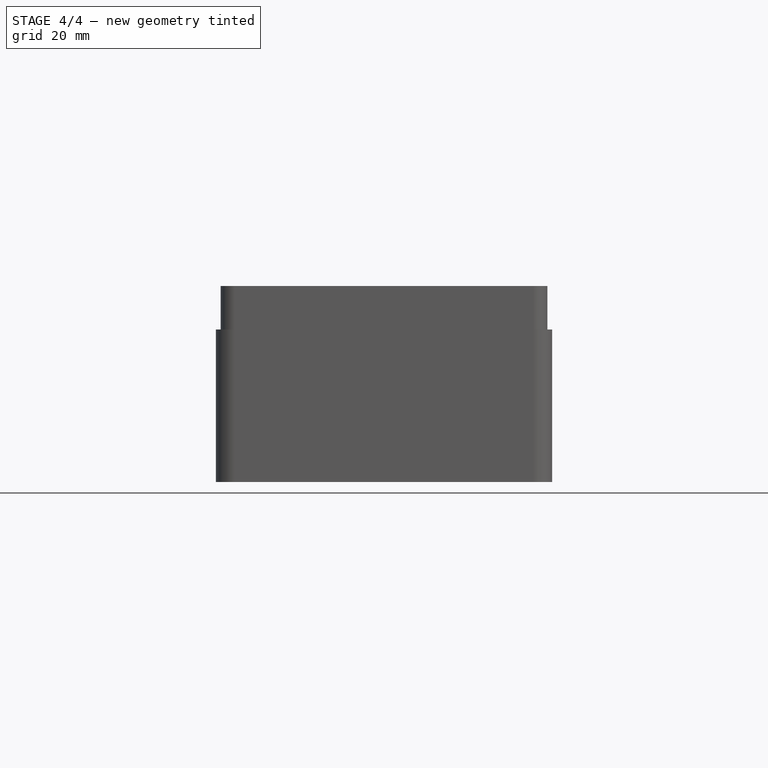
[diagram: stage 4 of 4 — front view after this stage's code; geometry added in this stage tinted green]
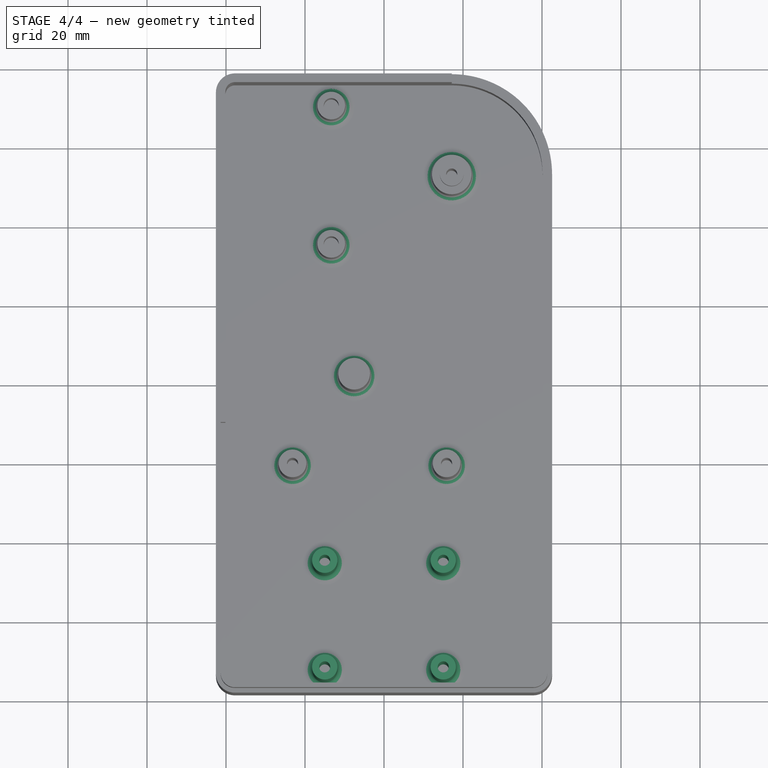
[diagram: stage 4 of 4 — top view after this stage's code; geometry added in this stage tinted green]
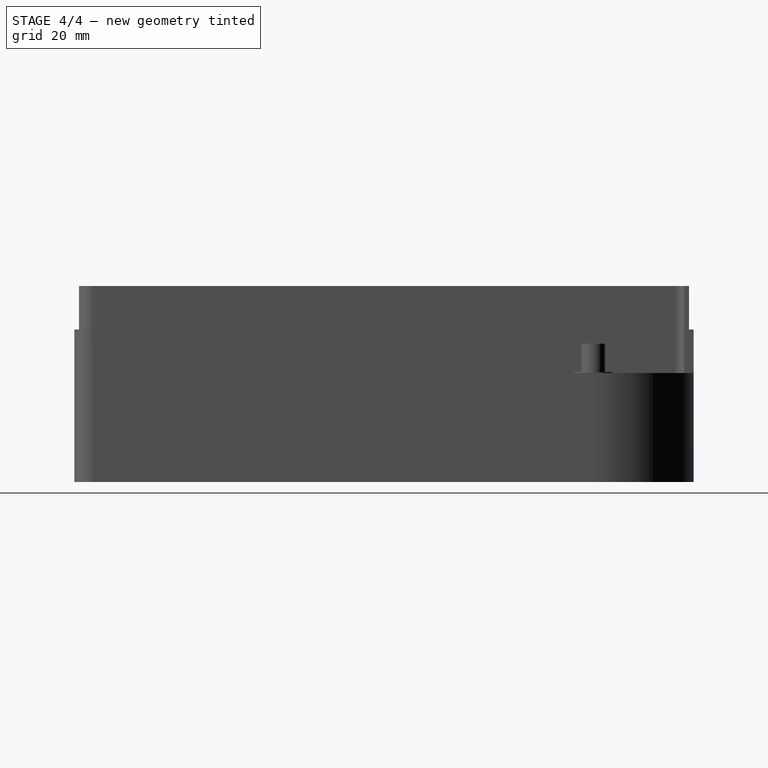
[diagram: stage 4 of 4 — right view after this stage's code; geometry added in this stage tinted green]
FEATURE [Sketcher::SketchObject] Sketch008  label="Sketch_lcd_mount"
  AttachmentOffset = pos=(0,0,2.4) rot=(0,0,1;0rad)
  FullyConstrained = true
  MapMode = 5
  Placement = pos=(0,0,2.4) rot=(0,0,1;0rad)
  Support = -> [XY_Plane]
  expr: .AttachmentOffset.Base.z = data#<<data>>.WallThickness
  expr: Constraints[11] = data#<<data>>.InsideRadius
  expr: Constraints[12] = data#<<data>>.InsideWidth
  expr: Constraints[31] = data#<<data>>.LCDMountOutsideDiameter
  expr: Constraints[13] = data#<<data>>.InsideLength
  expr: Constraints[28] = data#<<data>>.LCDMountDistY
  expr: Constraints[29] = data#<<data>>.LCDMountDistX
  expr: Constraints[30] = data#<<data>>.LCDMountInsideDiameter
  expr: Constraints[32] = data#<<data>>.LCDMountOffsetX
  expr: Constraints[33] = data#<<data>>.LCDMountOffsetY
  sketch-geometry (13):
    g0: ArcOfCircle CenterX=17.15 CenterY=53 CenterZ=0 NormalX=0 NormalY=0 NormalZ=1 AngleXU=0 Radius=23 StartAngle=0 EndAngle=1.5708
    g1: LineSegment StartX=17.15 StartY=76 StartZ=0 EndX=-40.15 EndY=76 EndZ=0
    g2: LineSegment StartX=-40.15 StartY=76 StartZ=0 EndX=-40.15 EndY=-76 EndZ=0
    g3: LineSegment StartX=-40.15 StartY=-76 StartZ=0 EndX=40.15 EndY=-76 EndZ=0
    g4: LineSegment StartX=40.15 StartY=-76 StartZ=0 EndX=40.15 EndY=53 EndZ=0
    g5: Circle CenterX=-15 CenterY=-45 CenterZ=0 NormalX=0 NormalY=0 NormalZ=1 AngleXU=0 Radius=1.4
    g6: Circle CenterX=-15 CenterY=-45 CenterZ=0 NormalX=0 NormalY=0 NormalZ=1 AngleXU=0 Radius=3.2
    g7: Circle CenterX=15 CenterY=-45 CenterZ=0 NormalX=0 NormalY=0 NormalZ=1 AngleXU=0 Radius=1.4
    g8: Circle CenterX=15 CenterY=-45 CenterZ=0 NormalX=0 NormalY=0 NormalZ=1 AngleXU=0 Radius=3.2
    g9: Circle CenterX=-15 CenterY=-72 CenterZ=0 NormalX=0 NormalY=0 NormalZ=1 AngleXU=0 Radius=1.4
    g10: Circle CenterX=-15 CenterY=-72 CenterZ=0 NormalX=0 NormalY=0 NormalZ=1 AngleXU=0 Radius=3.2
    g11: Circle CenterX=15 CenterY=-72 CenterZ=0 NormalX=0 NormalY=0 NormalZ=1 AngleXU=0 Radius=1.4
    g12: Circle CenterX=15 CenterY=-72 CenterZ=0 NormalX=0 NormalY=0 NormalZ=1 AngleXU=0 Radius=3.2
  constraints (34):
    c: Vertical(g0,g0)
    c: Horizontal(g0,g0)
    c: Tangent(g0,g1) = -1.5708
    c: Coincident(g1,g2)
    c: Vertical(g2)
    c: Coincident(g2,g3)
    c: Horizontal(g3)
    c: Coincident(g3,g4)
    c: Coincident(g4,g0)
    c: Vertical(g4)
    c: Symmetric(g3,g1,g-1)
    c: Radius(g0) = 23
    c: DistanceX(g3,g3) = 80.3
    c: DistanceY(g2,g2) = 152
    c: Coincident(g6,g5)
    c: Coincident(g8,g7)
    c: Coincident(g10,g9)
    c: Coincident(g12,g11)
    c: Equal(g5,g7)
    c: Equal(g7,g11)
    c: Equal(g11,g9)
    c: Equal(g6,g10)
    c: Equal(g10,g8)
    c: Equal(g8,g12)
    c: Horizontal(g5,g7)
    c: Horizontal(g9,g11)
    c: Vertical(g5,g9)
    c: Vertical(g7,g11)
    c: DistanceY(g9,g5) = 27
    c: DistanceX(g5,g7) = 30
    c: Diameter(g11) = 2.8
    c: Diameter(g12) = 6.4
    c: DistanceX(g2,g9) = 25.15
    c: DistanceY(g2,g9) = 4
FEATURE [PartDesign::Pad] Pad008
  BaseFeature = -> Pad007
  Direction = (1,1,1)
  Length = 43.85
  Length2 = 100
  Profile = -> Sketch008
  Type = 0
  expr: Length = data#<<data>>.LCDMountLength
FEATURE [PartDesign::Fillet] Fillet
  Base = -> Pad008 [Edge152,Edge153,Edge151,Edge147,Edge150,Edge149,Edge146,Edge145,Edge148,Edge154]
  BaseFeature = -> Pad008
  Radius = 2.4
  SupportTransform = false
  expr: Radius = data#<<data>>.WallThickness
FEATURE [PartDesign::CoordinateSystem] LCS_stepper_mount_1
  AttacherType = Attacher::AttachEngine3D
  MapMode = 11
  Placement = pos=(-13.35,70.5,25.4) rot=(0,0,1;1.5708rad)
  Support = -> [Fillet]
FEATURE [PartDesign::CoordinateSystem] LCS_gear02
  AttacherType = Attacher::AttachEngine3D
  MapMode = 11
  Placement = pos=(17.15,53,27.8) rot=(0,0,1;1.5708rad)
  Support = -> [Fillet]
FEATURE [PartDesign::CoordinateSystem] LCS_spacer
  AttacherType = Attacher::AttachEngine3D
  MapMode = 11
  Placement = pos=(17.15,53,35) rot=(0,0,1;1.5708rad)
  Support = -> [Fillet]
FEATURE [PartDesign::CoordinateSystem] LCS_pcb_1
  AttacherType = Attacher::AttachEngine3D
  MapMode = 11
  Placement = pos=(-23.15,-20.3,37) rot=(0,0,1;1.5708rad)
  Support = -> [Fillet]
FEATURE [PartDesign::CoordinateSystem] LCS_lcd
  AttacherType = Attacher::AttachEngine3D
  MapMode = 11
  Placement = pos=(15,-45,46.25) rot=(0,0,1;1.5708rad)
  Support = -> [Fillet]
FEATURE [PartDesign::CoordinateSystem] LCS_front
  AttacherType = Attacher::AttachEngine3D
  MapMode = 1
  Placement = pos=(-41.35,-19.55,38.6) rot=(0,0,1;3.14159rad)
  Support = -> [Fillet]
FEATURE [PartDesign::Body] Body_back
  Group = -> [LCS_0,Sketch,Pad,Sketch001,Pad001,Sketch002,Pad002,Sketch003,Pad003,Sketch004,Pad004,Sketch005,Pad005,Sketch006,Pad006,Sketch007,Pad007,Sketch008,Pad008,Fillet,LCS_stepper_mount_1,LCS_gear02,LCS_spacer,LCS_pcb_1,LCS_lcd,LCS_front]
  Origin = -> Origin
  Tip = -> Fillet
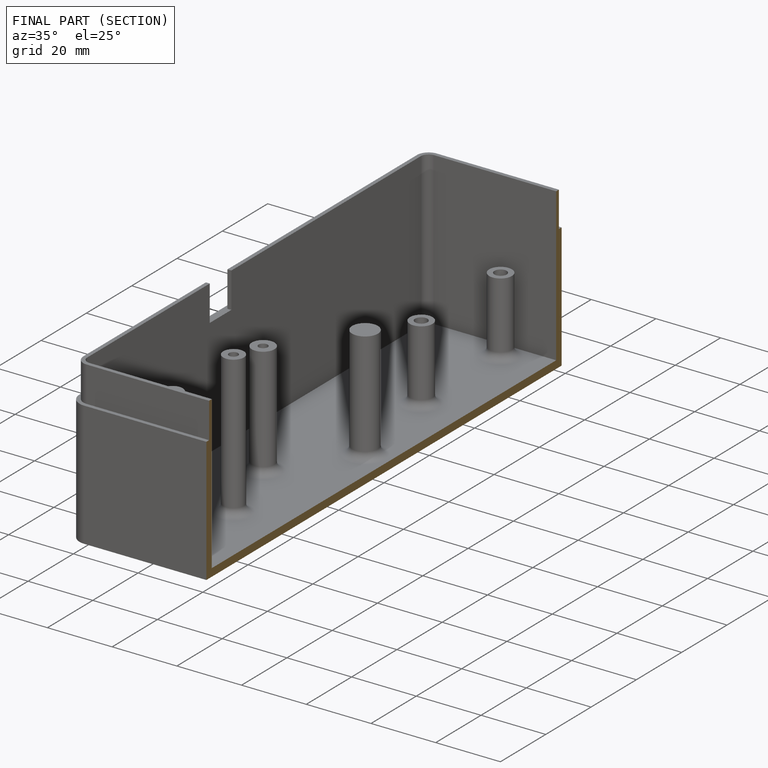
[diagram: finished part — half-section view (interior)]
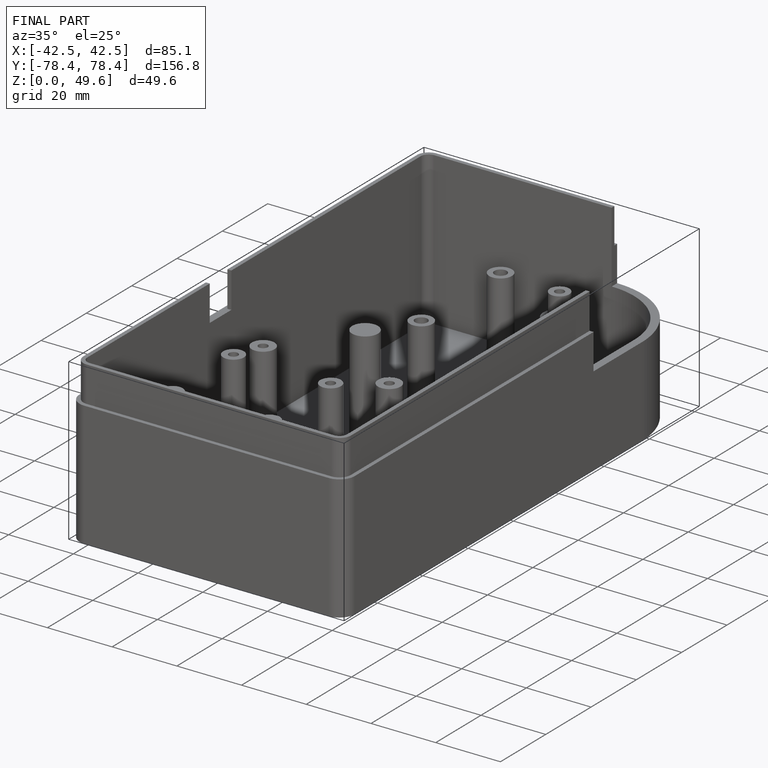
[diagram: finished part — iso view with bounding-box wireframe]
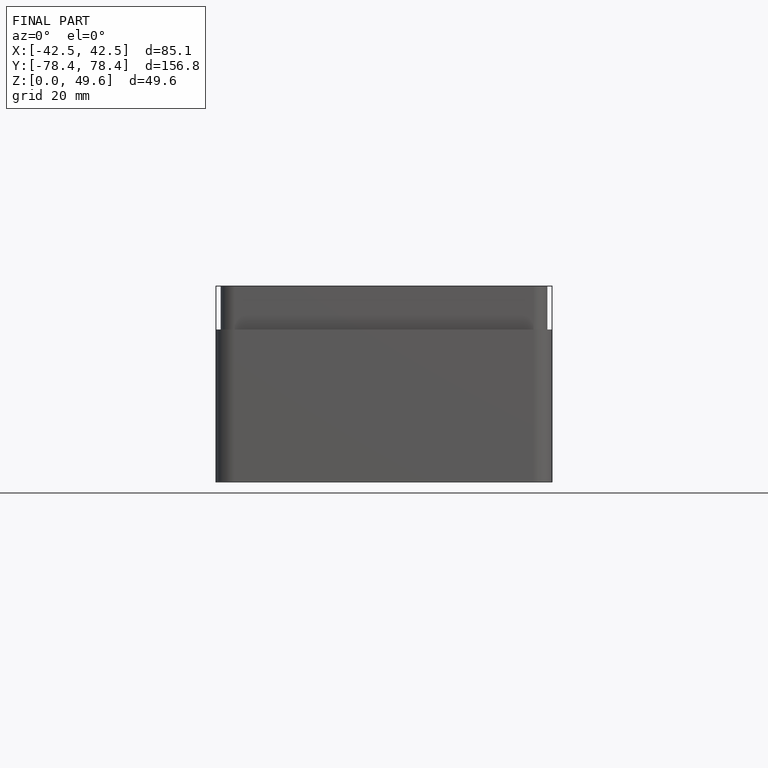
[diagram: finished part — front view with bounding-box wireframe]
